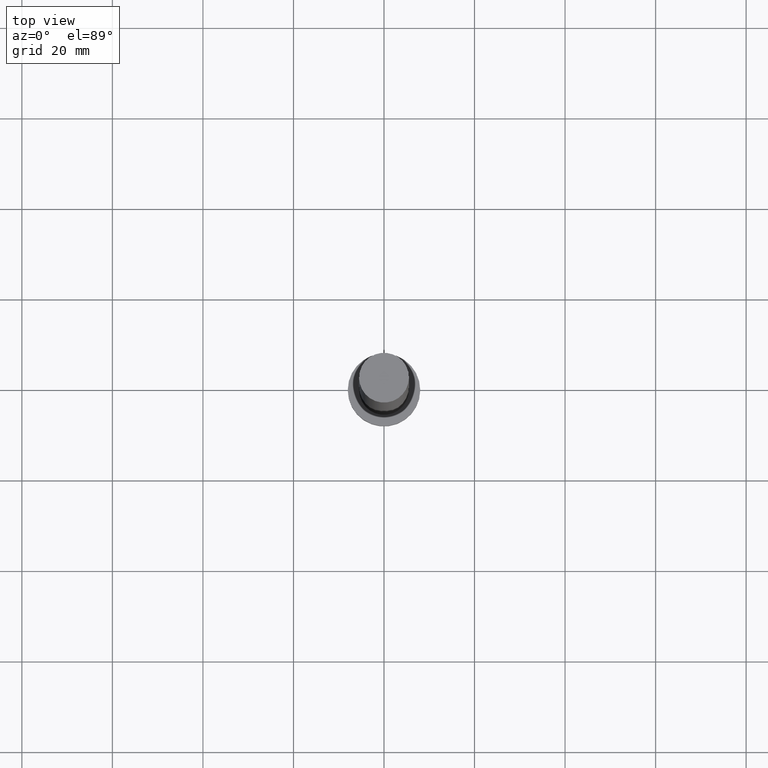
[diagram: clean part render]
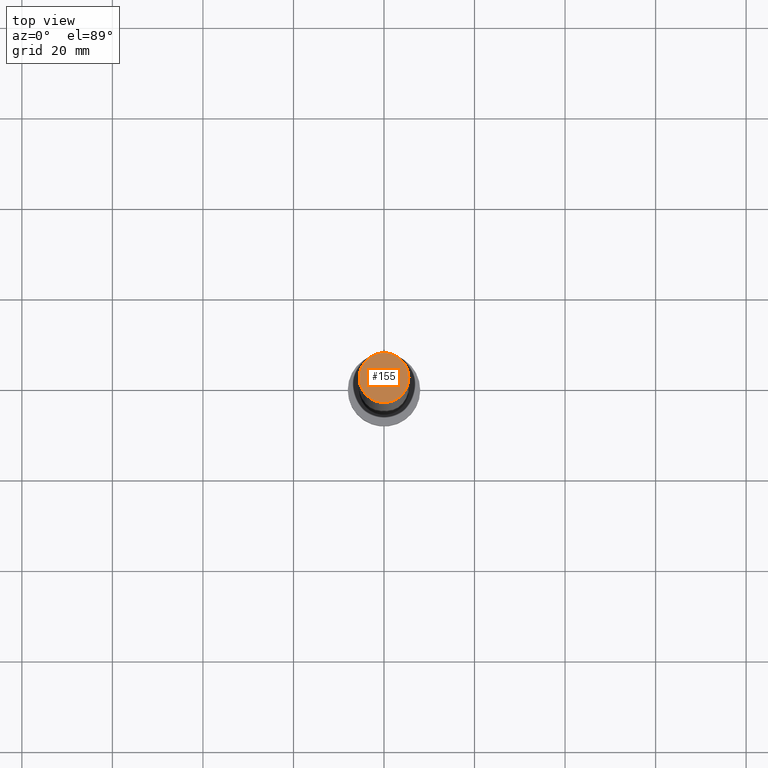
[diagram: same view with one face highlighted and labeled with its STEP entity id]
A machine part, top view. The second image highlights one B-rep face of the part: STEP entity #155.
In plain terms, the highlighted planar face has unit normal (0, 0, 1).
Its self-contained STEP definition (entity closure, byte-faithful):
#2 = CARTESIAN_POINT ( 'NONE',  ( 0.000000000000000000, 0.000000000000000000, 160.0000000000000000 ) ) ;
#21 = DIRECTION ( 'NONE',  ( 1.000000000000000000, 0.000000000000000000, 0.000000000000000000 ) ) ;
#28 = CIRCLE ( 'NONE', #96, 5.500000000000000000 ) ;
#32 = VERTEX_POINT ( 'NONE', #129 ) ;
#42 = DIRECTION ( 'NONE',  ( 0.000000000000000000, 0.000000000000000000, 1.000000000000000000 ) ) ;
#45 = PLANE ( 'NONE',  #98 ) ;
#51 = EDGE_CURVE ( 'NONE', #32, #75, #70, .T. ) ;
#60 = DIRECTION ( 'NONE',  ( 1.000000000000000000, 0.000000000000000000, -0.000000000000000000 ) ) ;
#70 = CIRCLE ( 'NONE', #243, 5.500000000000000000 ) ;
#75 = VERTEX_POINT ( 'NONE', #179 ) ;
#80 = DIRECTION ( 'NONE',  ( 0.000000000000000000, 0.000000000000000000, 1.000000000000000000 ) ) ;
#96 = AXIS2_PLACEMENT_3D ( 'NONE', #2, #200, #21 ) ;
#98 = AXIS2_PLACEMENT_3D ( 'NONE', #134, #80, #60 ) ;
#105 = CARTESIAN_POINT ( 'NONE',  ( 0.000000000000000000, 0.000000000000000000, 160.0000000000000000 ) ) ;
#114 = EDGE_CURVE ( 'NONE', #75, #32, #28, .T. ) ;
#126 = EDGE_LOOP ( 'NONE', ( #209, #210 ) ) ;
#129 = CARTESIAN_POINT ( 'NONE',  ( -5.500000000000000000, 0.000000000000000000, 160.0000000000000000 ) ) ;
#132 = FACE_OUTER_BOUND ( 'NONE', #126, .T. ) ;
#134 = CARTESIAN_POINT ( 'NONE',  ( 0.000000000000000000, 0.000000000000000000, 160.0000000000000000 ) ) ;
#155 = ADVANCED_FACE ( 'NONE', ( #132 ), #45, .T. ) ;
#175 = DIRECTION ( 'NONE',  ( 1.000000000000000000, 0.000000000000000000, 0.000000000000000000 ) ) ;
#179 = CARTESIAN_POINT ( 'NONE',  ( 5.500000000000000000, 6.735557395310442023E-16, 160.0000000000000000 ) ) ;
#200 = DIRECTION ( 'NONE',  ( 0.000000000000000000, 0.000000000000000000, 1.000000000000000000 ) ) ;
#209 = ORIENTED_EDGE ( 'NONE', *, *, #51, .T. ) ;
#210 = ORIENTED_EDGE ( 'NONE', *, *, #114, .T. ) ;
#243 = AXIS2_PLACEMENT_3D ( 'NONE', #105, #42, #175 ) ;